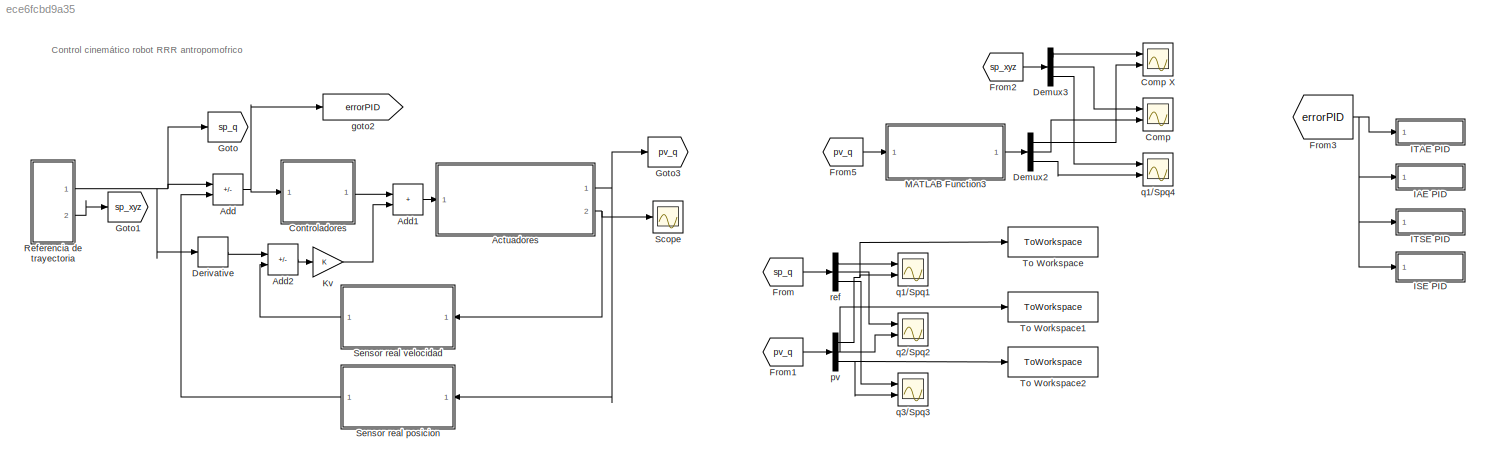
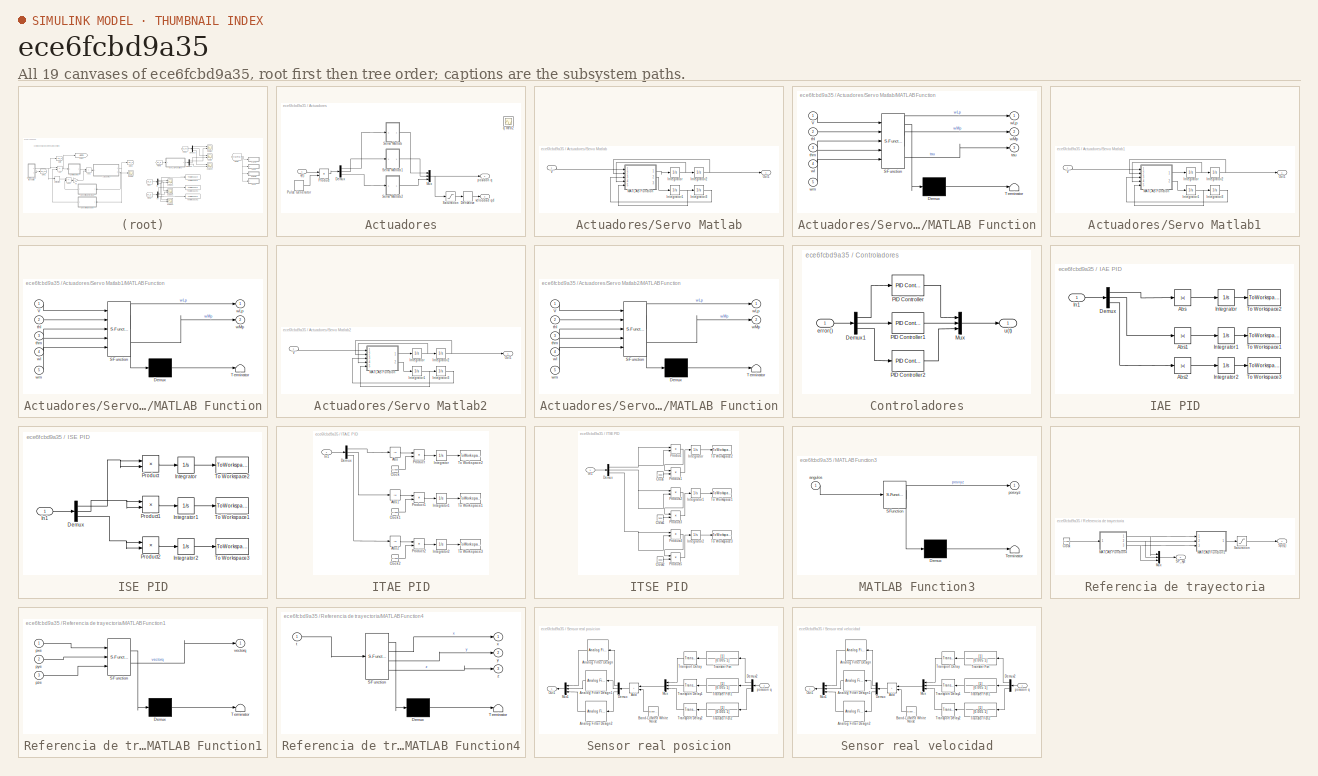
[diagram: thumbnail index - all 19 canvases of the model, root first then tree order]
MODEL slx_ece6fcbd9a35
KIND model
CONFIG AbsTol = auto
CONFIG EnableMultiTasking = off
CONFIG FixedStep = auto
CONFIG MaxStep = auto
CONFIG MinStep = auto
CONFIG RelTol = 1e-3
CONFIG SampleTimeConstraint = Unconstrained
CONFIG SolverName = VariableStepAuto
CONFIG StartTime = 0.0
CONFIG StopTime = 110
BLOCK [SubSystem] Actuadores
  Ports = [1, 2]
  RequestExecContextInheritance = off
BLOCK [Demux] Actuadores/Demux
  Outputs = 3
  Ports = [1, 3]
BLOCK [Derivative] Actuadores/Derivative
BLOCK [Mux] Actuadores/Mux
  DisplayOption = bar
  Inputs = 3
  Ports = [3, 1]
BLOCK [Product] Actuadores/Product
  Ports = [2, 1]
BLOCK [DiscretePulseGenerator] Actuadores/Pulse Generator
  Period = 0.001
  Ports = [0, 1]
  PulseType = Time based
  PulseWidth = 50
BLOCK [Saturate] Actuadores/Saturation
  LowerLimit = -pi
  UpperLimit = pi
BLOCK [SubSystem] Actuadores/Servo Matlab
  Ports = [1, 1]
  RequestExecContextInheritance = off
BLOCK [Integrator] Actuadores/Servo Matlab/Integrator
  LowerSaturationLimit = -pi/2
  Ports = [1, 1]
  UpperSaturationLimit = pi/2
BLOCK [Integrator] Actuadores/Servo Matlab/Integrator1
  Ports = [1, 1]
BLOCK [Integrator] Actuadores/Servo Matlab/Integrator2
  LimitOutput = on
  LowerSaturationLimit = -pi/2
  Ports = [1, 1]
  UpperSaturationLimit = pi/2
BLOCK [Integrator] Actuadores/Servo Matlab/Integrator3
  LowerSaturationLimit = -pi/2
  Ports = [1, 1]
  UpperSaturationLimit = pi/2
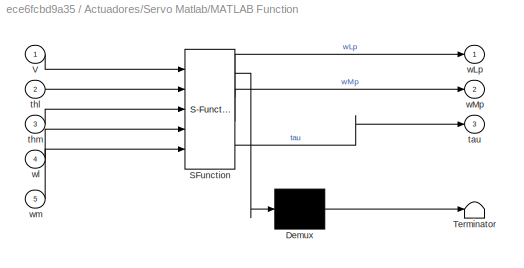
BLOCK [SubSystem] Actuadores/Servo Matlab/MATLAB Function
  ErrorFcn = Stateflow.Translate.translate
  PermitHierarchicalResolution = ExplicitOnly
  Ports = [5, 3]
  RequestExecContextInheritance = off
  SFBlockType = MATLAB Function
  TreatAsAtomicUnit = on
BLOCK [Demux] Actuadores/Servo Matlab/MATLAB Function/ Demux 
  Outputs = 1
  Ports = [1, 1]
BLOCK [S-Function] Actuadores/Servo Matlab/MATLAB Function/ SFunction 
  EnableBusSupport = on
  FunctionName = sf_sfun
  PortCounts = [5 4]
  Ports = [5, 4]
  SFcnIsStateOwnerBlock = off
  SFunctionDeploymentMode = off
  Tag = Stateflow S-Function 1
BLOCK [Terminator] Actuadores/Servo Matlab/MATLAB Function/ Terminator 
BLOCK [Inport] Actuadores/Servo Matlab/MATLAB Function/V
BLOCK [Outport] Actuadores/Servo Matlab/MATLAB Function/tau
  Port = 3
BLOCK [Inport] Actuadores/Servo Matlab/MATLAB Function/thl
  Port = 2
BLOCK [Inport] Actuadores/Servo Matlab/MATLAB Function/thm
  Port = 3
BLOCK [Outport] Actuadores/Servo Matlab/MATLAB Function/wLp
BLOCK [Outport] Actuadores/Servo Matlab/MATLAB Function/wMp
  Port = 2
BLOCK [Inport] Actuadores/Servo Matlab/MATLAB Function/wl
  Port = 4
BLOCK [Inport] Actuadores/Servo Matlab/MATLAB Function/wm
  Port = 5
BLOCK [Outport] Actuadores/Servo Matlab/Out1
BLOCK [Inport] Actuadores/Servo Matlab/V
BLOCK [SubSystem] Actuadores/Servo Matlab1
  Ports = [1, 1]
  RequestExecContextInheritance = off
BLOCK [Integrator] Actuadores/Servo Matlab1/Integrator
  LowerSaturationLimit = -pi/2
  Ports = [1, 1]
  UpperSaturationLimit = pi/2
BLOCK [Integrator] Actuadores/Servo Matlab1/Integrator1
  Ports = [1, 1]
BLOCK [Integrator] Actuadores/Servo Matlab1/Integrator2
  InitialCondition = pi/2
  LimitOutput = on
  LowerSaturationLimit = -pi/2
  Ports = [1, 1]
  UpperSaturationLimit = pi/2
BLOCK [Integrator] Actuadores/Servo Matlab1/Integrator3
  LowerSaturationLimit = -pi/2
  Ports = [1, 1]
  UpperSaturationLimit = pi/2
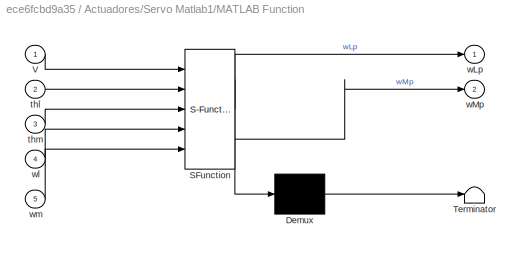
BLOCK [SubSystem] Actuadores/Servo Matlab1/MATLAB Function
  ErrorFcn = Stateflow.Translate.translate
  PermitHierarchicalResolution = ExplicitOnly
  Ports = [5, 2]
  RequestExecContextInheritance = off
  SFBlockType = MATLAB Function
  TreatAsAtomicUnit = on
BLOCK [Demux] Actuadores/Servo Matlab1/MATLAB Function/ Demux 
  Outputs = 1
  Ports = [1, 1]
BLOCK [S-Function] Actuadores/Servo Matlab1/MATLAB Function/ SFunction 
  EnableBusSupport = on
  FunctionName = sf_sfun
  PortCounts = [5 3]
  Ports = [5, 3]
  SFcnIsStateOwnerBlock = off
  SFunctionDeploymentMode = off
  Tag = Stateflow S-Function 8
BLOCK [Terminator] Actuadores/Servo Matlab1/MATLAB Function/ Terminator 
BLOCK [Inport] Actuadores/Servo Matlab1/MATLAB Function/V
BLOCK [Inport] Actuadores/Servo Matlab1/MATLAB Function/thl
  Port = 2
BLOCK [Inport] Actuadores/Servo Matlab1/MATLAB Function/thm
  Port = 3
BLOCK [Outport] Actuadores/Servo Matlab1/MATLAB Function/wLp
BLOCK [Outport] Actuadores/Servo Matlab1/MATLAB Function/wMp
  Port = 2
BLOCK [Inport] Actuadores/Servo Matlab1/MATLAB Function/wl
  Port = 4
BLOCK [Inport] Actuadores/Servo Matlab1/MATLAB Function/wm
  Port = 5
BLOCK [Outport] Actuadores/Servo Matlab1/Out1
BLOCK [Inport] Actuadores/Servo Matlab1/V
BLOCK [SubSystem] Actuadores/Servo Matlab2
  Ports = [1, 1]
  RequestExecContextInheritance = off
BLOCK [Integrator] Actuadores/Servo Matlab2/Integrator
  InitialCondition = -pi/2
  LowerSaturationLimit = -pi/2
  Ports = [1, 1]
  UpperSaturationLimit = pi/2
BLOCK [Integrator] Actuadores/Servo Matlab2/Integrator1
  Ports = [1, 1]
BLOCK [Integrator] Actuadores/Servo Matlab2/Integrator2
  LimitOutput = on
  LowerSaturationLimit = -pi/2
  Ports = [1, 1]
  UpperSaturationLimit = pi/2
BLOCK [Integrator] Actuadores/Servo Matlab2/Integrator3
  LowerSaturationLimit = -pi/2
  Ports = [1, 1]
  UpperSaturationLimit = pi/2
BLOCK [SubSystem] Actuadores/Servo Matlab2/MATLAB Function
  ErrorFcn = Stateflow.Translate.translate
  PermitHierarchicalResolution = ExplicitOnly
  Ports = [5, 2]
  RequestExecContextInheritance = off
  SFBlockType = MATLAB Function
  TreatAsAtomicUnit = on
BLOCK [Demux] Actuadores/Servo Matlab2/MATLAB Function/ Demux 
  Outputs = 1
  Ports = [1, 1]
BLOCK [S-Function] Actuadores/Servo Matlab2/MATLAB Function/ SFunction 
  EnableBusSupport = on
  FunctionName = sf_sfun
  PortCounts = [5 3]
  Ports = [5, 3]
  SFcnIsStateOwnerBlock = off
  SFunctionDeploymentMode = off
  Tag = Stateflow S-Function 9
BLOCK [Terminator] Actuadores/Servo Matlab2/MATLAB Function/ Terminator 
BLOCK [Inport] Actuadores/Servo Matlab2/MATLAB Function/V
BLOCK [Inport] Actuadores/Servo Matlab2/MATLAB Function/thl
  Port = 2
BLOCK [Inport] Actuadores/Servo Matlab2/MATLAB Function/thm
  Port = 3
BLOCK [Outport] Actuadores/Servo Matlab2/MATLAB Function/wLp
BLOCK [Outport] Actuadores/Servo Matlab2/MATLAB Function/wMp
  Port = 2
BLOCK [Inport] Actuadores/Servo Matlab2/MATLAB Function/wl
  Port = 4
BLOCK [Inport] Actuadores/Servo Matlab2/MATLAB Function/wm
  Port = 5
BLOCK [Outport] Actuadores/Servo Matlab2/Out1
BLOCK [Inport] Actuadores/Servo Matlab2/V
BLOCK [Outport] Actuadores/posicion q
BLOCK [Scope] Actuadores/q med2
  Floating = off
  NumInputPorts = 1
  Ports = [1]
  ScopeSpecificationString = Simulink.scopes.TimeScopeBlockCfg('CurrentConfiguration', extmgr.ConfigurationSet(extmgr.Configuration('Core','General UI',true),extmgr.Configuration('Core','Source UI',true),extmgr.Configuration('Sources','WiredSimulink',true,'DataLoggingVariableName','ScopeData3'),extmgr.Configuration('Visuals','Time Domain',true,'SerializedDisplays',{struct('MinYLimReal','-13.5','MaxYLimReal','1.5','YLabelReal'...<+2121ch>
BLOCK [Inport] Actuadores/v(t)
BLOCK [Outport] Actuadores/velocidad qd
  Port = 2
BLOCK [Sum] Add
  IconShape = rectangular
  Inputs = +-
  Ports = [2, 1]
BLOCK [Sum] Add1
  IconShape = rectangular
  Ports = [2, 1]
BLOCK [Sum] Add2
  IconShape = rectangular
  Inputs = +-
  Ports = [2, 1]
BLOCK [Scope] Comp
  Floating = off
  NumInputPorts = 2
  Ports = [2]
  ScopeSpecificationString = Simulink.scopes.TimeScopeBlockCfg('CurrentConfiguration', extmgr.ConfigurationSet(extmgr.Configuration('Core','General UI',true,'FigureColor',[1 1 1]),extmgr.Configuration('Core','Source UI',true),extmgr.Configuration('Sources','WiredSimulink',true,'DataLoggingVariableName','ScopeData6'),extmgr.Configuration('Visuals','Time Domain',true,'SerializedDisplays',{struct('MinYLimReal','-0.04339','MaxYLi...<+2048ch>
BLOCK [Scope] Comp X
  Floating = off
  NumInputPorts = 2
  Ports = [2]
  ScopeSpecificationString = Simulink.scopes.TimeScopeBlockCfg('CurrentConfiguration', extmgr.ConfigurationSet(extmgr.Configuration('Core','General UI',true,'FigureColor',[1 1 1]),extmgr.Configuration('Core','Source UI',true),extmgr.Configuration('Sources','WiredSimulink',true,'DataLoggingVariableName','ScopeData5'),extmgr.Configuration('Visuals','Time Domain',true,'SerializedDisplays',{struct('MinYLimReal','0.07687','MaxYLim...<+2042ch>
BLOCK [SubSystem] Controladores
  Ports = [1, 1]
  RequestExecContextInheritance = off
BLOCK [Demux] Controladores/Demux1
  Outputs = 3
  Ports = [1, 3]
BLOCK [Mux] Controladores/Mux
  DisplayOption = bar
  Inputs = 3
  Ports = [3, 1]
BLOCK [Reference] Controladores/PID Controller  REF=slpidlib/PID Controller
  Ports = [1, 1]
  SourceBlock = slpidlib/PID Controller
  SourceProductBaseCode = SL
  SourceType = PID 1dof
BLOCK [Reference] Controladores/PID Controller1  REF=slpidlib/PID Controller
  Ports = [1, 1]
  SourceBlock = slpidlib/PID Controller
  SourceProductBaseCode = SL
  SourceType = PID 1dof
BLOCK [Reference] Controladores/PID Controller2  REF=slpidlib/PID Controller
  Ports = [1, 1]
  SourceBlock = slpidlib/PID Controller
  SourceProductBaseCode = SL
  SourceType = PID 1dof
BLOCK [Inport] Controladores/error()
BLOCK [Outport] Controladores/u(t)
BLOCK [Demux] Demux2
  Outputs = 3
  Ports = [1, 3]
BLOCK [Demux] Demux3
  Outputs = 3
  Ports = [1, 3]
BLOCK [Derivative] Derivative
BLOCK [From] From
  GotoTag = sp_q
BLOCK [From] From1
  GotoTag = pv_q
BLOCK [From] From2
  GotoTag = sp_xyz
BLOCK [From] From3
  GotoTag = errorPID
BLOCK [From] From5
  GotoTag = pv_q
BLOCK [Goto] Goto
  GotoTag = sp_q
BLOCK [Goto] Goto1
  GotoTag = sp_xyz
BLOCK [Goto] Goto3
  GotoTag = pv_q
BLOCK [SubSystem] IAE PID
  Ports = [1]
  RequestExecContextInheritance = off
BLOCK [Abs] IAE PID/Abs
  SaturateOnIntegerOverflow = off
BLOCK [Abs] IAE PID/Abs1
  SaturateOnIntegerOverflow = off
BLOCK [Abs] IAE PID/Abs2
  SaturateOnIntegerOverflow = off
BLOCK [Demux] IAE PID/Demux
  Outputs = 3
  Ports = [1, 3]
BLOCK [Inport] IAE PID/In1
BLOCK [Integrator] IAE PID/Integrator
  LimitOutput = on
  LowerSaturationLimit = 0
  Ports = [1, 1]
BLOCK [Integrator] IAE PID/Integrator1
  LimitOutput = on
  LowerSaturationLimit = 0
  Ports = [1, 1]
BLOCK [Integrator] IAE PID/Integrator2
  LimitOutput = on
  LowerSaturationLimit = 0
  Ports = [1, 1]
BLOCK [ToWorkspace] IAE PID/To Workspace1
  FixptAsFi = on
  MaxDataPoints = inf
  Ports = [1]
  SampleTime = 0.1
  VariableName = IAE_PID_2
BLOCK [ToWorkspace] IAE PID/To Workspace2
  FixptAsFi = on
  MaxDataPoints = inf
  Ports = [1]
  SampleTime = 0.1
  VariableName = IAE_PID_1
BLOCK [ToWorkspace] IAE PID/To Workspace3
  FixptAsFi = on
  MaxDataPoints = inf
  Ports = [1]
  SampleTime = 0.1
  VariableName = IAE_PID_3
BLOCK [SubSystem] ISE PID
  Ports = [1]
  RequestExecContextInheritance = off
BLOCK [Demux] ISE PID/Demux
  Outputs = 3
  Ports = [1, 3]
BLOCK [Inport] ISE PID/In1
BLOCK [Integrator] ISE PID/Integrator
  LimitOutput = on
  LowerSaturationLimit = 0
  Ports = [1, 1]
BLOCK [Integrator] ISE PID/Integrator1
  LimitOutput = on
  LowerSaturationLimit = 0
  Ports = [1, 1]
BLOCK [Integrator] ISE PID/Integrator2
  LimitOutput = on
  LowerSaturationLimit = 0
  Ports = [1, 1]
BLOCK [Product] ISE PID/Product
  Ports = [2, 1]
BLOCK [Product] ISE PID/Product1
  Ports = [2, 1]
BLOCK [Product] ISE PID/Product2
  Ports = [2, 1]
BLOCK [ToWorkspace] ISE PID/To Workspace1
  FixptAsFi = on
  MaxDataPoints = inf
  Ports = [1]
  SampleTime = 0.1
  VariableName = ISE_PID_2
BLOCK [ToWorkspace] ISE PID/To Workspace2
  FixptAsFi = on
  MaxDataPoints = inf
  Ports = [1]
  SampleTime = 0.1
  VariableName = ISE_PID_1
BLOCK [ToWorkspace] ISE PID/To Workspace3
  FixptAsFi = on
  MaxDataPoints = inf
  Ports = [1]
  SampleTime = 0.1
  VariableName = ISE_PID_3
BLOCK [SubSystem] ITAE PID
  Ports = [1]
  RequestExecContextInheritance = off
BLOCK [Abs] ITAE PID/Abs
  SaturateOnIntegerOverflow = off
BLOCK [Abs] ITAE PID/Abs1
  SaturateOnIntegerOverflow = off
BLOCK [Abs] ITAE PID/Abs2
  SaturateOnIntegerOverflow = off
BLOCK [Clock] ITAE PID/Clock
BLOCK [Clock] ITAE PID/Clock1
BLOCK [Clock] ITAE PID/Clock2
BLOCK [Demux] ITAE PID/Demux
  Outputs = 3
  Ports = [1, 3]
BLOCK [Inport] ITAE PID/In1
BLOCK [Integrator] ITAE PID/Integrator
  LimitOutput = on
  LowerSaturationLimit = 0
  Ports = [1, 1]
BLOCK [Integrator] ITAE PID/Integrator1
  LimitOutput = on
  LowerSaturationLimit = 0
  Ports = [1, 1]
BLOCK [Integrator] ITAE PID/Integrator2
  LimitOutput = on
  LowerSaturationLimit = 0
  Ports = [1, 1]
BLOCK [Product] ITAE PID/Product
  Ports = [2, 1]
BLOCK [Product] ITAE PID/Product1
  Ports = [2, 1]
BLOCK [Product] ITAE PID/Product2
  Ports = [2, 1]
BLOCK [ToWorkspace] ITAE PID/To Workspace1
  FixptAsFi = on
  MaxDataPoints = inf
  Ports = [1]
  SampleTime = 0.1
  VariableName = ITAE_PID_2
BLOCK [ToWorkspace] ITAE PID/To Workspace2
  FixptAsFi = on
  MaxDataPoints = inf
  Ports = [1]
  SampleTime = 0.1
  VariableName = ITAE_PID_1
BLOCK [ToWorkspace] ITAE PID/To Workspace3
  FixptAsFi = on
  MaxDataPoints = inf
  Ports = [1]
  SampleTime = 0.1
  VariableName = ITAE_PID_3
BLOCK [SubSystem] ITSE PID
  Ports = [1]
  RequestExecContextInheritance = off
BLOCK [Clock] ITSE PID/Clock
BLOCK [Clock] ITSE PID/Clock1
BLOCK [Clock] ITSE PID/Clock2
BLOCK [Demux] ITSE PID/Demux
  Outputs = 3
  Ports = [1, 3]
BLOCK [Inport] ITSE PID/In1
BLOCK [Integrator] ITSE PID/Integrator
  LimitOutput = on
  LowerSaturationLimit = 0
  Ports = [1, 1]
BLOCK [Integrator] ITSE PID/Integrator1
  LimitOutput = on
  LowerSaturationLimit = 0
  Ports = [1, 1]
BLOCK [Integrator] ITSE PID/Integrator2
  LimitOutput = on
  LowerSaturationLimit = 0
  Ports = [1, 1]
BLOCK [Product] ITSE PID/Product
  Ports = [2, 1]
BLOCK [Product] ITSE PID/Product1
  Ports = [2, 1]
BLOCK [Product] ITSE PID/Product2
  Ports = [2, 1]
BLOCK [Product] ITSE PID/Product3
  Ports = [2, 1]
BLOCK [Product] ITSE PID/Product4
  Ports = [2, 1]
BLOCK [Product] ITSE PID/Product5
  Ports = [2, 1]
BLOCK [ToWorkspace] ITSE PID/To Workspace1
  FixptAsFi = on
  MaxDataPoints = inf
  Ports = [1]
  SampleTime = 0.1
  VariableName = ITSE_PID_2
BLOCK [ToWorkspace] ITSE PID/To Workspace2
  FixptAsFi = on
  MaxDataPoints = inf
  Ports = [1]
  SampleTime = 0.1
  VariableName = ITSE_PID_1
BLOCK [ToWorkspace] ITSE PID/To Workspace3
  FixptAsFi = on
  MaxDataPoints = inf
  Ports = [1]
  SampleTime = 0.1
  VariableName = ITSE_PID_3
BLOCK [Gain] Kv
BLOCK [SubSystem] MATLAB Function3
  ErrorFcn = Stateflow.Translate.translate
  PermitHierarchicalResolution = ExplicitOnly
  Ports = [1, 1]
  RequestExecContextInheritance = off
  SFBlockType = MATLAB Function
  TreatAsAtomicUnit = on
BLOCK [Demux] MATLAB Function3/ Demux 
  Outputs = 1
  Ports = [1, 1]
BLOCK [S-Function] MATLAB Function3/ SFunction 
  EnableBusSupport = on
  FunctionName = sf_sfun
  PortCounts = [1 2]
  Ports = [1, 2]
  SFcnIsStateOwnerBlock = off
  SFunctionDeploymentMode = off
  Tag = Stateflow S-Function 6
BLOCK [Terminator] MATLAB Function3/ Terminator 
BLOCK [Inport] MATLAB Function3/angulos
BLOCK [Outport] MATLAB Function3/posxyz
BLOCK [SubSystem] Referencia de trayectoria
  Ports = [0, 2]
  RequestExecContextInheritance = off
BLOCK [Clock] Referencia de trayectoria/Clock
BLOCK [SubSystem] Referencia de trayectoria/MATLAB Function1
  ErrorFcn = Stateflow.Translate.translate
  PermitHierarchicalResolution = ExplicitOnly
  Ports = [3, 1]
  RequestExecContextInheritance = off
  SFBlockType = MATLAB Function
  TreatAsAtomicUnit = on
BLOCK [Demux] Referencia de trayectoria/MATLAB Function1/ Demux 
  Outputs = 1
  Ports = [1, 1]
BLOCK [S-Function] Referencia de trayectoria/MATLAB Function1/ SFunction 
  EnableBusSupport = on
  FunctionName = sf_sfun
  PortCounts = [3 2]
  Ports = [3, 2]
  SFcnIsStateOwnerBlock = off
  SFunctionDeploymentMode = off
  Tag = Stateflow S-Function 2
BLOCK [Terminator] Referencia de trayectoria/MATLAB Function1/ Terminator 
BLOCK [Inport] Referencia de trayectoria/MATLAB Function1/pxe
BLOCK [Inport] Referencia de trayectoria/MATLAB Function1/pye
  Port = 2
BLOCK [Inport] Referencia de trayectoria/MATLAB Function1/pze
  Port = 3
BLOCK [Outport] Referencia de trayectoria/MATLAB Function1/vectorq
BLOCK [SubSystem] Referencia de trayectoria/MATLAB Function4
  ErrorFcn = Stateflow.Translate.translate
  PermitHierarchicalResolution = ExplicitOnly
  Ports = [1, 3]
  RequestExecContextInheritance = off
  SFBlockType = MATLAB Function
  TreatAsAtomicUnit = on
BLOCK [Demux] Referencia de trayectoria/MATLAB Function4/ Demux 
  Outputs = 1
  Ports = [1, 1]
BLOCK [S-Function] Referencia de trayectoria/MATLAB Function4/ SFunction 
  EnableBusSupport = on
  FunctionName = sf_sfun
  PortCounts = [1 4]
  Ports = [1, 4]
  SFcnIsStateOwnerBlock = off
  SFunctionDeploymentMode = off
  Tag = Stateflow S-Function 7
BLOCK [Terminator] Referencia de trayectoria/MATLAB Function4/ Terminator 
BLOCK [Inport] Referencia de trayectoria/MATLAB Function4/t
BLOCK [Outport] Referencia de trayectoria/MATLAB Function4/x
BLOCK [Outport] Referencia de trayectoria/MATLAB Function4/y
  Port = 2
BLOCK [Outport] Referencia de trayectoria/MATLAB Function4/z
  Port = 3
BLOCK [Mux] Referencia de trayectoria/Mux
  DisplayOption = bar
  Inputs = 3
  Ports = [3, 1]
BLOCK [Outport] Referencia de trayectoria/SP_xyz
  Port = 2
BLOCK [Saturate] Referencia de trayectoria/Saturation
  LowerLimit = -1.57
  UpperLimit = 1.57
BLOCK [Outport] Referencia de trayectoria/Sp(q)
BLOCK [Scope] Scope
  Floating = off
  NumInputPorts = 1
  Ports = [1]
  ScopeSpecificationString = Simulink.scopes.TimeScopeBlockCfg('CurrentConfiguration', extmgr.ConfigurationSet(extmgr.Configuration('Core','General UI',true),extmgr.Configuration('Core','Source UI',true),extmgr.Configuration('Sources','WiredSimulink',true,'DataLoggingVariableName','ScopeData1'),extmgr.Configuration('Visuals','Time Domain',true,'SerializedDisplays',{struct('MinYLimReal','-11.28512','MaxYLimReal','9.73064','YLa...<+1436ch>
BLOCK [SubSystem] Sensor real posicion
  NameLocation = top
  Ports = [1, 1]
  RequestExecContextInheritance = off
BLOCK [Sum] Sensor real posicion/Add
  IconShape = rectangular
  Ports = [2, 1]
BLOCK [Reference] Sensor real posicion/Analog Filter Design  REF=dsparch4/Analog
Filter Design
  NameLocation = top
  Ports = [1, 1]
  SourceBlock = dsparch4/Analog\nFilter Design
  SourceProductBaseCode = DS
  SourceType = Analog Filter Design
BLOCK [Reference] Sensor real posicion/Analog Filter Design1  REF=dsparch4/Analog
Filter Design
  NameLocation = top
  Ports = [1, 1]
  SourceBlock = dsparch4/Analog\nFilter Design
  SourceProductBaseCode = DS
  SourceType = Analog Filter Design
BLOCK [Reference] Sensor real posicion/Analog Filter Design2  REF=dsparch4/Analog
Filter Design
  NameLocation = top
  Ports = [1, 1]
  SourceBlock = dsparch4/Analog\nFilter Design
  SourceProductBaseCode = DS
  SourceType = Analog Filter Design
BLOCK [Reference] Sensor real posicion/Band-Limited White Noise  REF=simulink/Sources/Band-Limited
White Noise
  NameLocation = top
  Ports = [0, 1]
  SourceBlock = simulink/Sources/Band-Limited\nWhite Noise
  SourceProductBaseCode = SL
  SourceType = Band-Limited White Noise.
BLOCK [Demux] Sensor real posicion/Demux
  NameLocation = top
  Outputs = 3
  Ports = [1, 3]
BLOCK [Demux] Sensor real posicion/Demux2
  NameLocation = top
  Outputs = 3
  Ports = [1, 3]
BLOCK [Mux] Sensor real posicion/Mux
  DisplayOption = bar
  Inputs = 3
  NameLocation = top
  Ports = [3, 1]
BLOCK [Mux] Sensor real posicion/Mux1
  DisplayOption = bar
  Inputs = 3
  NameLocation = top
  Ports = [3, 1]
BLOCK [Outport] Sensor real posicion/Out1
BLOCK [TransferFcn] Sensor real posicion/Transfer Fcn
  Denominator = [0.005 1]
BLOCK [TransferFcn] Sensor real posicion/Transfer Fcn1
  Denominator = [0.005 1]
BLOCK [TransferFcn] Sensor real posicion/Transfer Fcn2
  Denominator = [0.005 1]
BLOCK [TransportDelay] Sensor real posicion/Transport Delay
  DelayTime = 0.05
  NameLocation = top
  Ports = [1, 1]
BLOCK [TransportDelay] Sensor real posicion/Transport Delay1
  DelayTime = 0.05
  NameLocation = top
  Ports = [1, 1]
BLOCK [TransportDelay] Sensor real posicion/Transport Delay2
  DelayTime = 0.05
  NameLocation = top
  Ports = [1, 1]
BLOCK [Inport] Sensor real posicion/posicion q
BLOCK [SubSystem] Sensor real velocidad
  NameLocation = top
  Ports = [1, 1]
  RequestExecContextInheritance = off
BLOCK [Sum] Sensor real velocidad/Add
  IconShape = rectangular
  Ports = [2, 1]
BLOCK [Reference] Sensor real velocidad/Analog Filter Design  REF=dsparch4/Analog
Filter Design
  NameLocation = top
  Ports = [1, 1]
  SourceBlock = dsparch4/Analog\nFilter Design
  SourceProductBaseCode = DS
  SourceType = Analog Filter Design
BLOCK [Reference] Sensor real velocidad/Analog Filter Design1  REF=dsparch4/Analog
Filter Design
  NameLocation = top
  Ports = [1, 1]
  SourceBlock = dsparch4/Analog\nFilter Design
  SourceProductBaseCode = DS
  SourceType = Analog Filter Design
BLOCK [Reference] Sensor real velocidad/Analog Filter Design2  REF=dsparch4/Analog
Filter Design
  NameLocation = top
  Ports = [1, 1]
  SourceBlock = dsparch4/Analog\nFilter Design
  SourceProductBaseCode = DS
  SourceType = Analog Filter Design
BLOCK [Reference] Sensor real velocidad/Band-Limited White Noise  REF=simulink/Sources/Band-Limited
White Noise
  NameLocation = top
  Ports = [0, 1]
  SourceBlock = simulink/Sources/Band-Limited\nWhite Noise
  SourceProductBaseCode = SL
  SourceType = Band-Limited White Noise.
BLOCK [Demux] Sensor real velocidad/Demux
  NameLocation = top
  Outputs = 3
  Ports = [1, 3]
BLOCK [Demux] Sensor real velocidad/Demux2
  NameLocation = top
  Outputs = 3
  Ports = [1, 3]
BLOCK [Mux] Sensor real velocidad/Mux
  DisplayOption = bar
  Inputs = 3
  NameLocation = top
  Ports = [3, 1]
BLOCK [Mux] Sensor real velocidad/Mux1
  DisplayOption = bar
  Inputs = 3
  NameLocation = top
  Ports = [3, 1]
BLOCK [Outport] Sensor real velocidad/Out1
BLOCK [TransferFcn] Sensor real velocidad/Transfer Fcn
  Denominator = [0.005 1]
BLOCK [TransferFcn] Sensor real velocidad/Transfer Fcn1
  Denominator = [0.005 1]
BLOCK [TransferFcn] Sensor real velocidad/Transfer Fcn2
  Denominator = [0.005 1]
BLOCK [TransportDelay] Sensor real velocidad/Transport Delay
  DelayTime = 0.05
  NameLocation = top
  Ports = [1, 1]
BLOCK [TransportDelay] Sensor real velocidad/Transport Delay1
  DelayTime = 0.05
  NameLocation = top
  Ports = [1, 1]
BLOCK [TransportDelay] Sensor real velocidad/Transport Delay2
  DelayTime = 0.05
  NameLocation = top
  Ports = [1, 1]
BLOCK [Inport] Sensor real velocidad/posicion q
BLOCK [ToWorkspace] To Workspace
  FixptAsFi = on
  MaxDataPoints = inf
  Ports = [1]
  SampleTime = 0.1
  VariableName = q1
BLOCK [ToWorkspace] To Workspace1
  FixptAsFi = on
  MaxDataPoints = inf
  Ports = [1]
  SampleTime = 0.1
  VariableName = q2
BLOCK [ToWorkspace] To Workspace2
  FixptAsFi = on
  MaxDataPoints = inf
  Ports = [1]
  SampleTime = 0.1
  VariableName = q3
BLOCK [Goto] goto2
  GotoTag = errorPID
BLOCK [Demux] pv
  Outputs = 3
  Ports = [1, 3]
BLOCK [Scope] q1//Spq1
  Floating = off
  NumInputPorts = 2
  Ports = [2]
  ScopeSpecificationString = Simulink.scopes.TimeScopeBlockCfg('CurrentConfiguration', extmgr.ConfigurationSet(extmgr.Configuration('Core','General UI',true,'FigureColor',[1 1 1]),extmgr.Configuration('Core','Source UI',true),extmgr.Configuration('Sources','WiredSimulink',true,'DataLoggingVariableName','ScopeData1'),extmgr.Configuration('Visuals','Time Domain',true,'SerializedDisplays',{struct('MinYLimReal','-1.9635','MaxYLim...<+2035ch>
BLOCK [Scope] q1//Spq4
  Floating = off
  NumInputPorts = 2
  Ports = [2]
  ScopeSpecificationString = Simulink.scopes.TimeScopeBlockCfg('CurrentConfiguration', extmgr.ConfigurationSet(extmgr.Configuration('Core','General UI',true,'FigureColor',[1 1 1]),extmgr.Configuration('Core','Source UI',true),extmgr.Configuration('Sources','WiredSimulink',true,'DataLoggingVariableName','ScopeData7'),extmgr.Configuration('Visuals','Time Domain',true,'SerializedDisplays',{struct('MinYLimReal','0.15226','MaxYLim...<+2046ch>
BLOCK [Scope] q2//Spq2
  Floating = off
  NumInputPorts = 2
  Ports = [2]
  ScopeSpecificationString = Simulink.scopes.TimeScopeBlockCfg('CurrentConfiguration', extmgr.ConfigurationSet(extmgr.Configuration('Core','General UI',true,'FigureColor',[1 1 1]),extmgr.Configuration('Core','Source UI',true),extmgr.Configuration('Sources','WiredSimulink',true,'DataLoggingVariableName','ScopeData2'),extmgr.Configuration('Visuals','Time Domain',true,'SerializedDisplays',{struct('MinYLimReal','-1.16779','MaxYLi...<+2041ch>
BLOCK [Scope] q3//Spq3
  Floating = off
  NumInputPorts = 2
  Ports = [2]
  ScopeSpecificationString = Simulink.scopes.TimeScopeBlockCfg('CurrentConfiguration', extmgr.ConfigurationSet(extmgr.Configuration('Core','General UI',true,'FigureColor',[1 1 1]),extmgr.Configuration('Core','Source UI',true),extmgr.Configuration('Sources','WiredSimulink',true,'DataLoggingVariableName','ScopeData3'),extmgr.Configuration('Visuals','Time Domain',true,'SerializedDisplays',{struct('MinYLimReal','-0.41988','MaxYLi...<+2041ch>
BLOCK [Demux] ref
  Outputs = 3
  Ports = [1, 3]
ANNOTATION (root): Control cinemático robot RRR antropomofrico
LINE Actuadores/Demux:1 -> Actuadores/Servo Matlab:1
LINE Actuadores/Demux:2 -> Actuadores/Servo Matlab1:1
LINE Actuadores/Demux:3 -> Actuadores/Servo Matlab2:1
LINE Actuadores/Derivative:1 -> Actuadores/velocidad qd:1
NET Actuadores/Mux:1 -> Actuadores/Saturation:1, Actuadores/posicion q:1
LINE Actuadores/Product:1 -> Actuadores/Demux:1
LINE Actuadores/Pulse Generator:1 -> Actuadores/Product:2
LINE Actuadores/Saturation:1 -> Actuadores/Derivative:1
NET Actuadores/Servo Matlab/Integrator1:1 -> Actuadores/Servo Matlab/Integrator3:1, Actuadores/Servo Matlab/MATLAB Function:5
NET Actuadores/Servo Matlab/Integrator2:1 -> Actuadores/Servo Matlab/MATLAB Function:2, Actuadores/Servo Matlab/Out1:1
LINE Actuadores/Servo Matlab/Integrator3:1 -> Actuadores/Servo Matlab/MATLAB Function:3
NET Actuadores/Servo Matlab/Integrator:1 -> Actuadores/Servo Matlab/Integrator2:1, Actuadores/Servo Matlab/MATLAB Function:4
LINE Actuadores/Servo Matlab/MATLAB Function:1 -> Actuadores/Servo Matlab/Integrator:1
LINE Actuadores/Servo Matlab/MATLAB Function:2 -> Actuadores/Servo Matlab/Integrator1:1
LINE Actuadores/Servo Matlab/V:1 -> Actuadores/Servo Matlab/MATLAB Function:1
NET Actuadores/Servo Matlab1/Integrator1:1 -> Actuadores/Servo Matlab1/Integrator3:1, Actuadores/Servo Matlab1/MATLAB Function:5
NET Actuadores/Servo Matlab1/Integrator2:1 -> Actuadores/Servo Matlab1/MATLAB Function:2, Actuadores/Servo Matlab1/Out1:1
LINE Actuadores/Servo Matlab1/Integrator3:1 -> Actuadores/Servo Matlab1/MATLAB Function:3
NET Actuadores/Servo Matlab1/Integrator:1 -> Actuadores/Servo Matlab1/Integrator2:1, Actuadores/Servo Matlab1/MATLAB Function:4
LINE Actuadores/Servo Matlab1/MATLAB Function:1 -> Actuadores/Servo Matlab1/Integrator:1
LINE Actuadores/Servo Matlab1/MATLAB Function:2 -> Actuadores/Servo Matlab1/Integrator1:1
LINE Actuadores/Servo Matlab1/V:1 -> Actuadores/Servo Matlab1/MATLAB Function:1
LINE Actuadores/Servo Matlab1:1 -> Actuadores/Mux:2
NET Actuadores/Servo Matlab2/Integrator1:1 -> Actuadores/Servo Matlab2/Integrator3:1, Actuadores/Servo Matlab2/MATLAB Function:5
NET Actuadores/Servo Matlab2/Integrator2:1 -> Actuadores/Servo Matlab2/MATLAB Function:2, Actuadores/Servo Matlab2/Out1:1
LINE Actuadores/Servo Matlab2/Integrator3:1 -> Actuadores/Servo Matlab2/MATLAB Function:3
NET Actuadores/Servo Matlab2/Integrator:1 -> Actuadores/Servo Matlab2/Integrator2:1, Actuadores/Servo Matlab2/MATLAB Function:4
LINE Actuadores/Servo Matlab2/MATLAB Function:1 -> Actuadores/Servo Matlab2/Integrator:1
LINE Actuadores/Servo Matlab2/MATLAB Function:2 -> Actuadores/Servo Matlab2/Integrator1:1
LINE Actuadores/Servo Matlab2/V:1 -> Actuadores/Servo Matlab2/MATLAB Function:1
LINE Actuadores/Servo Matlab2:1 -> Actuadores/Mux:3
LINE Actuadores/Servo Matlab:1 -> Actuadores/Mux:1
LINE Actuadores/v(t):1 -> Actuadores/Product:1
NET Actuadores:1 -> Goto3:1, Sensor real posicion:1
NET Actuadores:2 -> Scope:1, Sensor real velocidad:1
LINE Add1:1 -> Actuadores:1
LINE Add2:1 -> Kv:1
NET Add:1 -> Controladores:1, goto2:1
LINE Controladores/Demux1:1 -> Controladores/PID Controller:1
LINE Controladores/Demux1:2 -> Controladores/PID Controller1:1
LINE Controladores/Demux1:3 -> Controladores/PID Controller2:1
LINE Controladores/Mux:1 -> Controladores/u(t):1
LINE Controladores/PID Controller1:1 -> Controladores/Mux:2
LINE Controladores/PID Controller2:1 -> Controladores/Mux:3
LINE Controladores/PID Controller:1 -> Controladores/Mux:1
LINE Controladores/error():1 -> Controladores/Demux1:1
LINE Controladores:1 -> Add1:1
LINE Demux2:1 -> Comp X:2
LINE Demux2:2 -> Comp:2
LINE Demux2:3 -> q1//Spq4:2
LINE Demux3:1 -> Comp X:1
LINE Demux3:2 -> Comp:1
LINE Demux3:3 -> q1//Spq4:1
LINE Derivative:1 -> Add2:1
LINE From1:1 -> pv:1
LINE From2:1 -> Demux3:1
NET From3:1 -> IAE PID:1, ISE PID:1, ITAE PID:1, ITSE PID:1
LINE From5:1 -> MATLAB Function3:1
LINE From:1 -> ref:1
LINE IAE PID/Abs1:1 -> IAE PID/Integrator1:1
LINE IAE PID/Abs2:1 -> IAE PID/Integrator2:1
LINE IAE PID/Abs:1 -> IAE PID/Integrator:1
LINE IAE PID/Demux:1 -> IAE PID/Abs:1
LINE IAE PID/Demux:2 -> IAE PID/Abs1:1
LINE IAE PID/Demux:3 -> IAE PID/Abs2:1
LINE IAE PID/In1:1 -> IAE PID/Demux:1
LINE IAE PID/Integrator1:1 -> IAE PID/To Workspace1:1
LINE IAE PID/Integrator2:1 -> IAE PID/To Workspace3:1
LINE IAE PID/Integrator:1 -> IAE PID/To Workspace2:1
NET ISE PID/Demux:1 -> ISE PID/Product:1, ISE PID/Product:2
NET ISE PID/Demux:2 -> ISE PID/Product1:1, ISE PID/Product1:2
NET ISE PID/Demux:3 -> ISE PID/Product2:1, ISE PID/Product2:2
LINE ISE PID/In1:1 -> ISE PID/Demux:1
LINE ISE PID/Integrator1:1 -> ISE PID/To Workspace1:1
LINE ISE PID/Integrator2:1 -> ISE PID/To Workspace3:1
LINE ISE PID/Integrator:1 -> ISE PID/To Workspace2:1
LINE ISE PID/Product1:1 -> ISE PID/Integrator1:1
LINE ISE PID/Product2:1 -> ISE PID/Integrator2:1
LINE ISE PID/Product:1 -> ISE PID/Integrator:1
LINE ITAE PID/Abs1:1 -> ITAE PID/Product1:1
LINE ITAE PID/Abs2:1 -> ITAE PID/Product2:1
LINE ITAE PID/Abs:1 -> ITAE PID/Product:1
LINE ITAE PID/Clock1:1 -> ITAE PID/Product1:2
LINE ITAE PID/Clock2:1 -> ITAE PID/Product2:2
LINE ITAE PID/Clock:1 -> ITAE PID/Product:2
LINE ITAE PID/Demux:1 -> ITAE PID/Abs:1
LINE ITAE PID/Demux:2 -> ITAE PID/Abs1:1
LINE ITAE PID/Demux:3 -> ITAE PID/Abs2:1
LINE ITAE PID/In1:1 -> ITAE PID/Demux:1
LINE ITAE PID/Integrator1:1 -> ITAE PID/To Workspace1:1
LINE ITAE PID/Integrator2:1 -> ITAE PID/To Workspace3:1
LINE ITAE PID/Integrator:1 -> ITAE PID/To Workspace2:1
LINE ITAE PID/Product1:1 -> ITAE PID/Integrator1:1
LINE ITAE PID/Product2:1 -> ITAE PID/Integrator2:1
LINE ITAE PID/Product:1 -> ITAE PID/Integrator:1
LINE ITSE PID/Clock1:1 -> ITSE PID/Product3:2
LINE ITSE PID/Clock2:1 -> ITSE PID/Product5:2
LINE ITSE PID/Clock:1 -> ITSE PID/Product1:2
NET ITSE PID/Demux:1 -> ITSE PID/Product:1, ITSE PID/Product:2
NET ITSE PID/Demux:2 -> ITSE PID/Product2:1, ITSE PID/Product2:2
NET ITSE PID/Demux:3 -> ITSE PID/Product4:1, ITSE PID/Product4:2
LINE ITSE PID/In1:1 -> ITSE PID/Demux:1
LINE ITSE PID/Integrator1:1 -> ITSE PID/To Workspace1:1
LINE ITSE PID/Integrator2:1 -> ITSE PID/To Workspace3:1
LINE ITSE PID/Integrator:1 -> ITSE PID/To Workspace2:1
LINE ITSE PID/Product1:1 -> ITSE PID/Integrator:1
LINE ITSE PID/Product2:1 -> ITSE PID/Product3:1
LINE ITSE PID/Product3:1 -> ITSE PID/Integrator1:1
LINE ITSE PID/Product4:1 -> ITSE PID/Product5:1
LINE ITSE PID/Product5:1 -> ITSE PID/Integrator2:1
LINE ITSE PID/Product:1 -> ITSE PID/Product1:1
LINE Kv:1 -> Add1:2
LINE MATLAB Function3:1 -> Demux2:1
LINE Referencia de trayectoria/Clock:1 -> Referencia de trayectoria/MATLAB Function4:1
LINE Referencia de trayectoria/MATLAB Function1:1 -> Referencia de trayectoria/Saturation:1
NET Referencia de trayectoria/MATLAB Function4:1 -> Referencia de trayectoria/MATLAB Function1:1, Referencia de trayectoria/Mux:1
NET Referencia de trayectoria/MATLAB Function4:2 -> Referencia de trayectoria/MATLAB Function1:2, Referencia de trayectoria/Mux:2
NET Referencia de trayectoria/MATLAB Function4:3 -> Referencia de trayectoria/MATLAB Function1:3, Referencia de trayectoria/Mux:3
LINE Referencia de trayectoria/Mux:1 -> Referencia de trayectoria/SP_xyz:1
LINE Referencia de trayectoria/Saturation:1 -> Referencia de trayectoria/Sp(q):1
NET Referencia de trayectoria:1 -> Add:1, Derivative:1, Goto:1
LINE Referencia de trayectoria:2 -> Goto1:1
LINE Sensor real posicion/Add:1 -> Sensor real posicion/Demux:1
LINE Sensor real posicion/Analog Filter Design1:1 -> Sensor real posicion/Mux1:2
LINE Sensor real posicion/Analog Filter Design2:1 -> Sensor real posicion/Mux1:3
LINE Sensor real posicion/Analog Filter Design:1 -> Sensor real posicion/Mux1:1
LINE Sensor real posicion/Band-Limited White Noise:1 -> Sensor real posicion/Add:2
LINE Sensor real posicion/Demux2:1 -> Sensor real posicion/Transfer Fcn:1
LINE Sensor real posicion/Demux2:2 -> Sensor real posicion/Transfer Fcn1:1
LINE Sensor real posicion/Demux2:3 -> Sensor real posicion/Transfer Fcn2:1
LINE Sensor real posicion/Demux:1 -> Sensor real posicion/Analog Filter Design:1
LINE Sensor real posicion/Demux:2 -> Sensor real posicion/Analog Filter Design1:1
LINE Sensor real posicion/Demux:3 -> Sensor real posicion/Analog Filter Design2:1
LINE Sensor real posicion/Mux1:1 -> Sensor real posicion/Out1:1
LINE Sensor real posicion/Mux:1 -> Sensor real posicion/Add:1
LINE Sensor real posicion/Transfer Fcn1:1 -> Sensor real posicion/Transport Delay1:1
LINE Sensor real posicion/Transfer Fcn2:1 -> Sensor real posicion/Transport Delay2:1
LINE Sensor real posicion/Transfer Fcn:1 -> Sensor real posicion/Transport Delay:1
LINE Sensor real posicion/Transport Delay1:1 -> Sensor real posicion/Mux:2
LINE Sensor real posicion/Transport Delay2:1 -> Sensor real posicion/Mux:3
LINE Sensor real posicion/Transport Delay:1 -> Sensor real posicion/Mux:1
LINE Sensor real posicion/posicion q:1 -> Sensor real posicion/Demux2:1
LINE Sensor real posicion:1 -> Add:2
LINE Sensor real velocidad/Add:1 -> Sensor real velocidad/Demux:1
LINE Sensor real velocidad/Analog Filter Design1:1 -> Sensor real velocidad/Mux1:2
LINE Sensor real velocidad/Analog Filter Design2:1 -> Sensor real velocidad/Mux1:3
LINE Sensor real velocidad/Analog Filter Design:1 -> Sensor real velocidad/Mux1:1
LINE Sensor real velocidad/Band-Limited White Noise:1 -> Sensor real velocidad/Add:2
LINE Sensor real velocidad/Demux2:1 -> Sensor real velocidad/Transfer Fcn:1
LINE Sensor real velocidad/Demux2:2 -> Sensor real velocidad/Transfer Fcn1:1
LINE Sensor real velocidad/Demux2:3 -> Sensor real velocidad/Transfer Fcn2:1
LINE Sensor real velocidad/Demux:1 -> Sensor real velocidad/Analog Filter Design:1
LINE Sensor real velocidad/Demux:2 -> Sensor real velocidad/Analog Filter Design1:1
LINE Sensor real velocidad/Demux:3 -> Sensor real velocidad/Analog Filter Design2:1
LINE Sensor real velocidad/Mux1:1 -> Sensor real velocidad/Out1:1
LINE Sensor real velocidad/Mux:1 -> Sensor real velocidad/Add:1
LINE Sensor real velocidad/Transfer Fcn1:1 -> Sensor real velocidad/Transport Delay1:1
LINE Sensor real velocidad/Transfer Fcn2:1 -> Sensor real velocidad/Transport Delay2:1
LINE Sensor real velocidad/Transfer Fcn:1 -> Sensor real velocidad/Transport Delay:1
LINE Sensor real velocidad/Transport Delay1:1 -> Sensor real velocidad/Mux:2
LINE Sensor real velocidad/Transport Delay2:1 -> Sensor real velocidad/Mux:3
LINE Sensor real velocidad/Transport Delay:1 -> Sensor real velocidad/Mux:1
LINE Sensor real velocidad/posicion q:1 -> Sensor real velocidad/Demux2:1
LINE Sensor real velocidad:1 -> Add2:2
NET pv:1 -> To Workspace:1, q1//Spq1:2
NET pv:2 -> To Workspace1:1, q2//Spq2:2
NET pv:3 -> To Workspace2:1, q3//Spq3:2
LINE ref:1 -> q1//Spq1:1
LINE ref:2 -> q2//Spq2:1
LINE ref:3 -> q3//Spq3:1
note: NET lines group one-source signal fan-out (src -> all destinations, sorted); 1:1 wires keep LINE
CHART Actuadores/Servo Matlab/MATLAB Function states=1 transitions=1
  STATE_LABEL 'eML_blk_kernel()'
  STATE_LABEL 'SCRIPT:\nfunction [wLp,wMp,tau] = servomotor(V, thl,thm, wl, wm)\nKt = 1280.2;  % Torsional rigidity\nKm = 10;      % Motor constant\nJm = 0.5;     % Motor inertia\nJl = 50*Jm;   % Load inertia\nN = 20;       % Gear ratio\nBm = 0.1;     % Rotor viscous friction\nBl = 25;      % Load viscous friction\nR = 20;       % Armature resistance\nwLp = (-(Kt/Jl)*(thl - (thm/N))) - ((Bl*wl)/Jl);\nwMp = (Km/Jm) * ((V - ...<+236ch>'
CHART Referencia de 
trayectoria/MATLAB Function1 states=1 transitions=1
  STATE_LABEL 'eML_blk_kernel()'
  STATE_LABEL 'SCRIPT:\nfunction vectorq = cininvRRR(pxe,pye,pze)\n%% Valores \nL1=0.2;L2=0.2;L3=0.2;\n%% angulos\nq1=atan2(pye,pxe);\ncq3=(pxe^2 +pye^2 +pze^2 -L2^2 -L3^2)/(2*L2*L3);\n%% Condicionante para la variable cq3\nif (cq3>=1)\n    cq3=1;\nelse\n    cq3=0.001;\nend \n\nq3=atan2(sqrt(1-cq3),cq3);\nbeta=atan2(pze,sqrt(pxe^2 +pye^2));\nalfa=atan2(L3*sin(q3),L2 +L3*cq3);\nq2=beta-alfa;\nvectorq=[q1;q2;q3];\n'
CHART MATLAB Function3 states=1 transitions=1
  STATE_LABEL 'eML_blk_kernel()'
  STATE_LABEL 'SCRIPT:\n%% Funcion cinematica directa\nfunction posxyz = cindinRRR(angulos)\n%% Vector angulo de 3 dim.\nth1=angulos(1);\nth2=angulos(2);\nth3=angulos(3);\n%% Valores eslabones\nL1=0.2;L2=0.2;L3=0.2;\n%% pos\nxe=cos(th1)*(L3*cos(th2+th3) + L2*cos(th2));\nye=sin(th1)*(L3*cos(th2+th3) + L2*cos(th2));\nze=L1+(L3*sin(th2+th3)) +L2*sin(th2);\nposxyz=[xe;ye;ze];\n'
CHART Referencia de 
trayectoria/MATLAB Function4 states=1 transitions=1
  STATE_LABEL 'eML_blk_kernel()'
  STATE_LABEL 'SCRIPT:\nfunction [x,y,z] = Trayectoria(t)\n\nif (t>=0) && (t<15)\n    x = 0.2;\n    y = 0.0;\n    z = 0.4;\n\nelseif (t>=15) && (t<30) \n    x = 0.2;\n    y = 0.0;\n    z = 0.0;\nelseif (t>=30) && (t<45)\n    x = 0.0;\n    y = 0.2;\n    z = 0.0;\n\nelseif (t>=45) && (t<60)\n    x = 0.2;\n    y = 0.0;\n    z = 0.0;\n\nelseif (t>=60) && (t<75)\n    x = 0.0;\n    y = -0.2;\n    z = 0.0;\n\n\nelseif (t>=75) && (t<90)\n    x = 0....<+145ch>'
CHART Actuadores/Servo Matlab1/MATLAB Function states=1 transitions=1
  STATE_LABEL 'eML_blk_kernel()'
  STATE_LABEL 'SCRIPT:\nfunction [wLp,wMp] = servomotor(V, thl,thm, wl, wm)\nKt = 1280.2;  % Torsional rigidity\nKm = 10;      % Motor constant\nJm = 0.5;     % Motor inertia\nJl = 50*Jm;   % Load inertia\nN = 20;       % Gear ratio\nBm = 0.1;     % Rotor viscous friction\nBl = 25;      % Load viscous friction\nR = 20;       % Armature resistance\nwLp = (-(Kt/Jl)*(thl - (thm/N))) - ((Bl*wl)/Jl);\nwMp = (Km/Jm) * ((V - Km *...<+183ch>'
CHART Actuadores/Servo Matlab2/MATLAB Function states=1 transitions=1
  STATE_LABEL 'eML_blk_kernel()'
  STATE_LABEL 'SCRIPT:\nfunction [wLp,wMp] = servomotor(V, thl,thm, wl, wm)\nKt = 1280.2;  % Torsional rigidity\nKm = 10;      % Motor constant\nJm = 0.5;     % Motor inertia\nJl = 50*Jm;   % Load inertia\nN = 20;       % Gear ratio\nBm = 0.1;     % Rotor viscous friction\nBl = 25;      % Load viscous friction\nR = 20;       % Armature resistance\nwLp = (-(Kt/Jl)*(thl - (thm/N))) - ((Bl*wl)/Jl);\nwMp = (Km/Jm) * ((V - Km *...<+183ch>'
CHART  states=0 transitions=0
CHART  states=0 transitions=0
CHART  states=0 transitions=0
CHART  states=0 transitions=0
CHART  states=0 transitions=0
CHART  states=0 transitions=0
